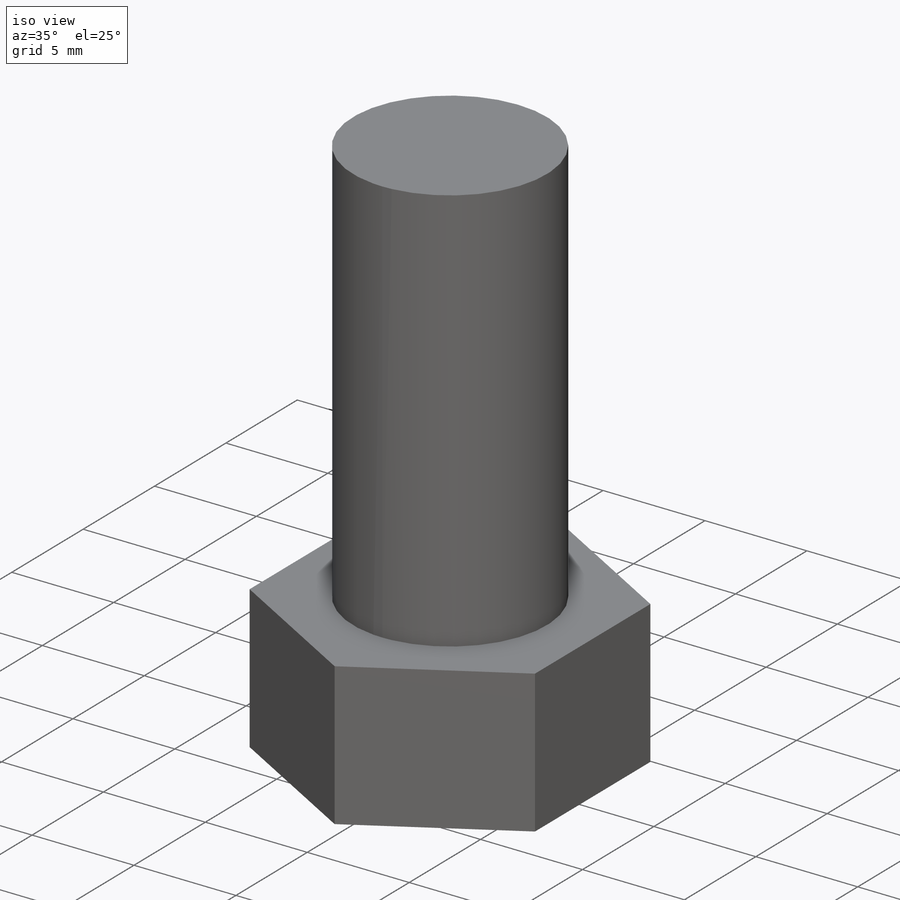
[diagram: iso view]
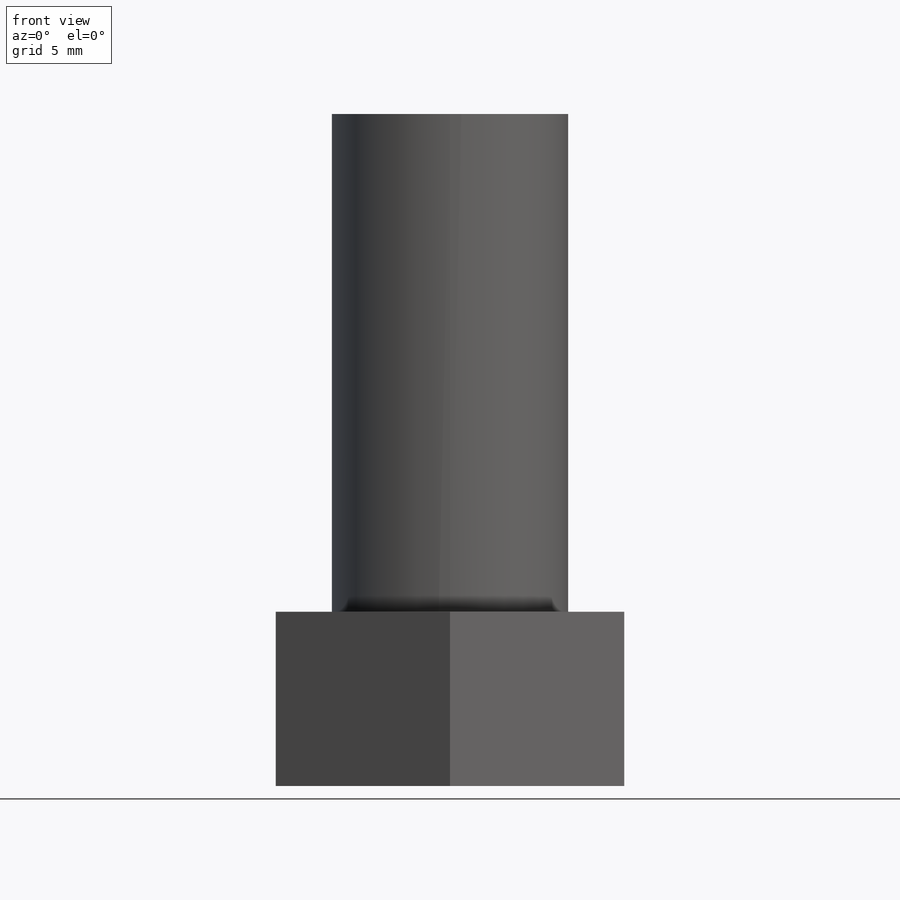
[diagram: front view]
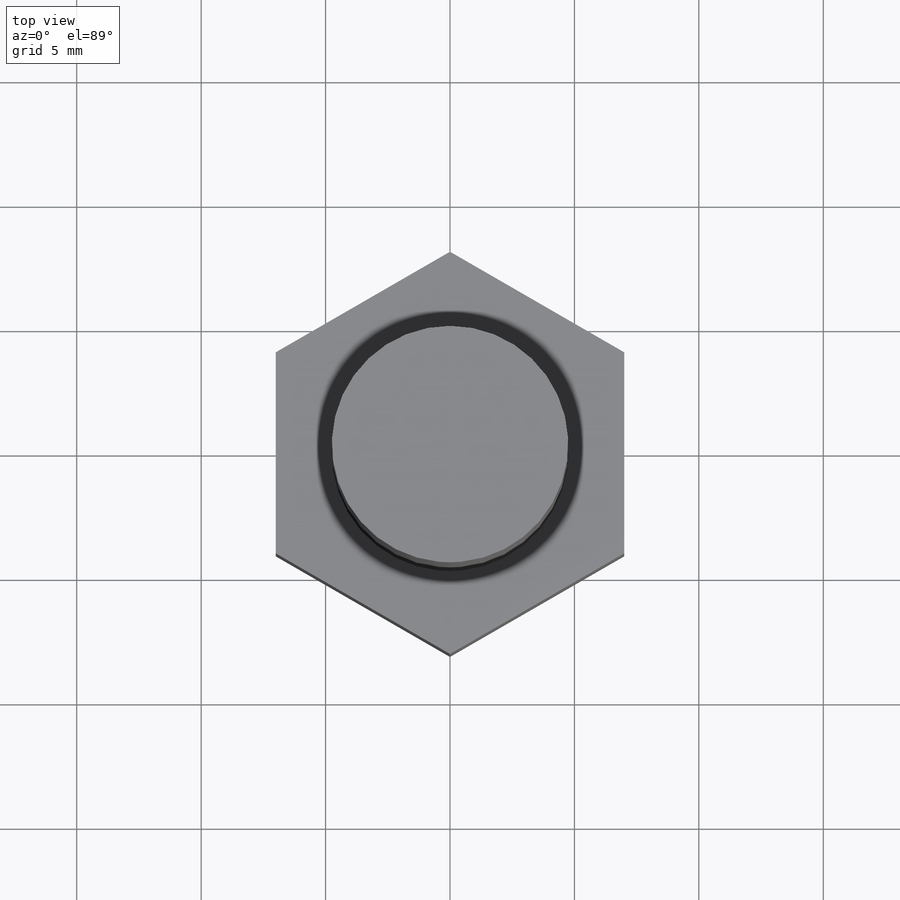
[diagram: top view]
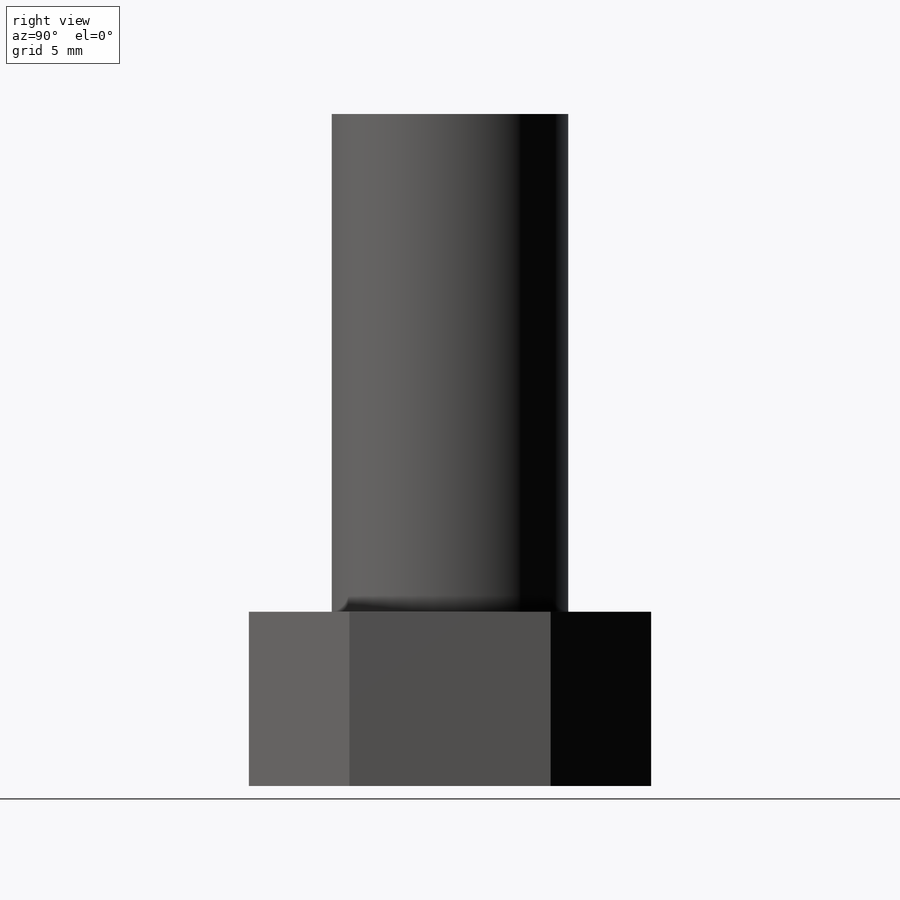
[diagram: right view]
SOLIDWORKS PART (.sldprt)
format: sldprt  version: not decoded by parser v0  size: 133,632 bytes
history: native  units: mm
features: sketch x2, extrude x2, thread x2, material x1 (+12 scaffold rows collapsed)
feature tree (19):
  scaffold x12  (default folders/planes/origin — collapsed)
  material  "Material <not specified>"
  sketch  "Sketch1"  dims[D1=14.0mm]
  extrude  "Boss-Extrude1"  Depth=7mm
  sketch  "Sketch2"  dims[D1=9.5mm]
  extrude  "Boss-Extrude2"  [1 undecoded]
  thread  "Cosmetic Thread1"  Diameter=6.891mm  [1 undecoded]
  thread  "Cosmetic Thread2"  Diameter=6.891mm  [1 undecoded]
decode coverage: 5 of 6 modeling features carry decoded parameters
note: 3 parameter values undecoded
note: suppression state not decoded; provenance and decode notes live in map.json
